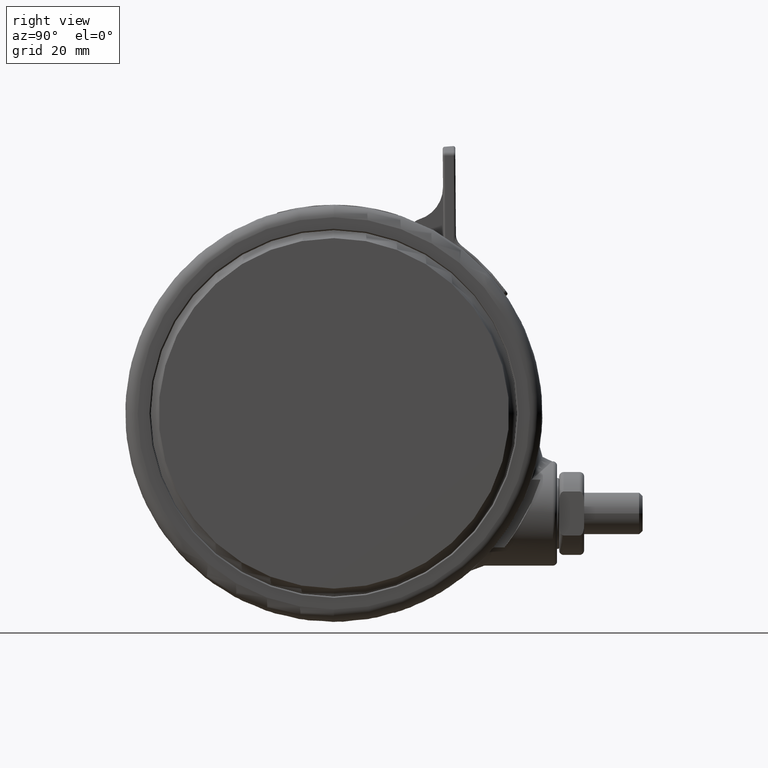
[diagram: clean part render]
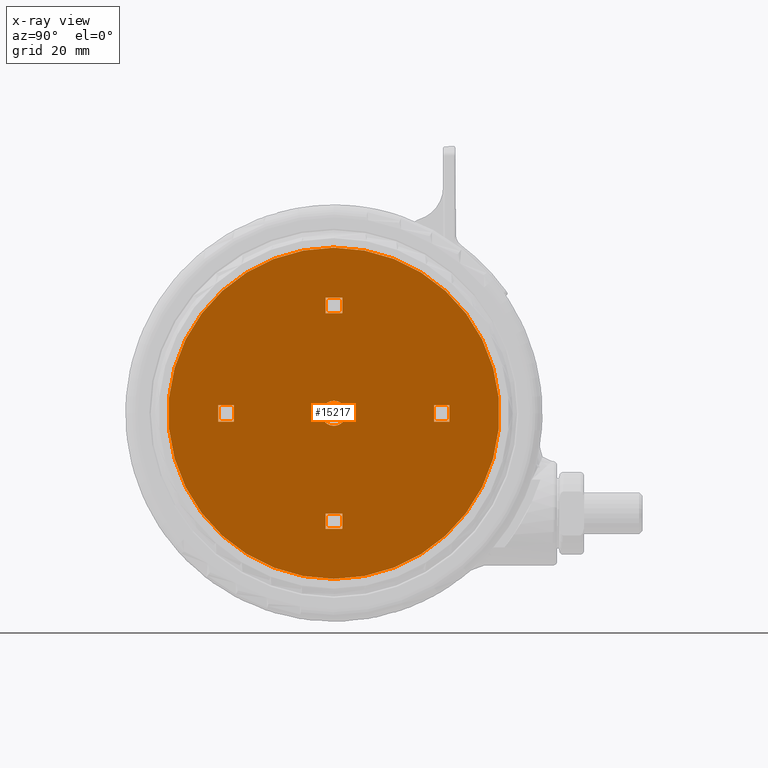
[diagram: x-ray — body ghosted, one internal face saturated and labeled with its STEP entity id]
A machine part, right view, then the same camera in x-ray: the body is ghosted and one INTERNAL B-rep face — a face not visible from any outside direction — is saturated and labeled: STEP entity #15217.
In plain terms, the highlighted planar face has unit normal (1, 0, -0).
Its self-contained STEP definition (entity closure, byte-faithful):
#1216 = VERTEX_POINT ( 'NONE', #29995 ) ;
#1236 = CARTESIAN_POINT ( 'NONE',  ( -24.00000000000000000, -2.000000000000085300, -1.800000000000000000 ) ) ;
#1327 = ORIENTED_EDGE ( 'NONE', *, *, #46119, .F. ) ;
#1688 = LINE ( 'NONE', #40749, #10527 ) ;
#2659 = DIRECTION ( 'NONE',  ( 0.0000000000000000000, -1.000000000000000000, -1.807003620809174900E-016 ) ) ;
#2767 = DIRECTION ( 'NONE',  ( 0.0000000000000000000, 0.0000000000000000000, 1.000000000000000000 ) ) ;
#2881 = CIRCLE ( 'NONE', #34788, 3.000000000000000000 ) ;
#2906 = EDGE_CURVE ( 'NONE', #45290, #19940, #31869, .T. ) ;
#2967 = CARTESIAN_POINT ( 'NONE',  ( 27.69999999999960100, 40.50000000000000000, -1.800000000000000000 ) ) ;
#3038 = CARTESIAN_POINT ( 'NONE',  ( 24.00000000000000000, -1.999999999999750200, -1.800000000000000000 ) ) ;
#3514 = CARTESIAN_POINT ( 'NONE',  ( 2.000000000000000000, 27.69999999999999900, -1.800000000000000000 ) ) ;
#3726 = FACE_BOUND ( 'NONE', #34097, .T. ) ;
#4092 = VERTEX_POINT ( 'NONE', #13174 ) ;
#4139 = ORIENTED_EDGE ( 'NONE', *, *, #5847, .T. ) ;
#4706 = VERTEX_POINT ( 'NONE', #24368 ) ;
#4894 = FACE_BOUND ( 'NONE', #8054, .T. ) ;
#4941 = EDGE_CURVE ( 'NONE', #19940, #17612, #48187, .T. ) ;
#5847 = EDGE_CURVE ( 'NONE', #34821, #25112, #20349, .T. ) ;
#6112 = CARTESIAN_POINT ( 'NONE',  ( -2.000000000000000000, 3.252606517456520200E-016, -1.800000000000000000 ) ) ;
#6302 = EDGE_CURVE ( 'NONE', #43984, #17612, #19788, .T. ) ;
#6652 = LINE ( 'NONE', #44896, #27920 ) ;
#6756 = DIRECTION ( 'NONE',  ( -1.047444401652940200E-014, 1.000000000000000000, 0.0000000000000000000 ) ) ;
#7027 = CARTESIAN_POINT ( 'NONE',  ( -27.69999999999999900, -2.000000000000095000, -1.800000000000000000 ) ) ;
#7148 = DIRECTION ( 'NONE',  ( -1.000000000000000000, 0.0000000000000000000, 0.0000000000000000000 ) ) ;
#7439 = CIRCLE ( 'NONE', #18311, 39.69999999999999600 ) ;
#7590 = CARTESIAN_POINT ( 'NONE',  ( -2.000000000000000000, 24.00000000000000000, -1.800000000000000000 ) ) ;
#7651 = VECTOR ( 'NONE', #32252, 1000.000000000000000 ) ;
#7670 = AXIS2_PLACEMENT_3D ( 'NONE', #17103, #43532, #20888 ) ;
#8054 = EDGE_LOOP ( 'NONE', ( #24970, #40544, #34228, #27446 ) ) ;
#8206 = VERTEX_POINT ( 'NONE', #7027 ) ;
#8537 = VECTOR ( 'NONE', #20758, 1000.000000000000000 ) ;
#9039 = AXIS2_PLACEMENT_3D ( 'NONE', #40427, #2767, #29188 ) ;
#9340 = CARTESIAN_POINT ( 'NONE',  ( 2.127414868480444800E-014, -2.000000000000000000, -1.800000000000000000 ) ) ;
#9468 = VERTEX_POINT ( 'NONE', #12021 ) ;
#9870 = LINE ( 'NONE', #15119, #36462 ) ;
#10291 = VECTOR ( 'NONE', #24747, 1000.000000000000000 ) ;
#10513 = VERTEX_POINT ( 'NONE', #15363 ) ;
#10527 = VECTOR ( 'NONE', #18119, 1000.000000000000000 ) ;
#11083 = VECTOR ( 'NONE', #20884, 1000.000000000000000 ) ;
#11543 = ORIENTED_EDGE ( 'NONE', *, *, #37113, .T. ) ;
#11853 = CARTESIAN_POINT ( 'NONE',  ( 9.270882257193608500E-016, 8.179836557379254000E-016, -1.800000000000023800 ) ) ;
#11937 = DIRECTION ( 'NONE',  ( -0.0000000000000000000, -0.0000000000000000000, -1.000000000000000000 ) ) ;
#12021 = CARTESIAN_POINT ( 'NONE',  ( 2.000000000000000000, -24.00000000000000000, -1.800000000000000000 ) ) ;
#12156 = ORIENTED_EDGE ( 'NONE', *, *, #6302, .F. ) ;
#12806 = VERTEX_POINT ( 'NONE', #34660 ) ;
#13174 = CARTESIAN_POINT ( 'NONE',  ( 3.000000000000000900, 8.179836557379254000E-016, -1.800000000000023800 ) ) ;
#13205 = VECTOR ( 'NONE', #41582, 1000.000000000000000 ) ;
#13550 = EDGE_LOOP ( 'NONE', ( #43117, #11543 ) ) ;
#13746 = FACE_BOUND ( 'NONE', #36878, .T. ) ;
#13987 = PLANE ( 'NONE',  #9039 ) ;
#14289 = EDGE_CURVE ( 'NONE', #4092, #47621, #39268, .T. ) ;
#14629 = LINE ( 'NONE', #35563, #33535 ) ;
#15119 = CARTESIAN_POINT ( 'NONE',  ( -2.000000000000000000, -3.252606517456520200E-016, -1.800000000000000000 ) ) ;
#15217 = ADVANCED_FACE ( 'NONE', ( #23826, #13746, #24987, #4894, #3726, #42730 ), #13987, .F. ) ;
#15363 = CARTESIAN_POINT ( 'NONE',  ( -2.000000000000000000, -27.69999999999999900, -1.800000000000000000 ) ) ;
#15655 = DIRECTION ( 'NONE',  ( 1.000000000000000000, 0.0000000000000000000, 0.0000000000000000000 ) ) ;
#15779 = DIRECTION ( 'NONE',  ( -1.000000000000000000, -1.047444401652940200E-014, -1.807003620809174900E-016 ) ) ;
#16335 = DIRECTION ( 'NONE',  ( -0.0000000000000000000, -0.0000000000000000000, -1.000000000000000000 ) ) ;
#16473 = EDGE_CURVE ( 'NONE', #43984, #45290, #43949, .T. ) ;
#16804 = VECTOR ( 'NONE', #2659, 1000.000000000000000 ) ;
#16884 = VECTOR ( 'NONE', #25196, 1000.000000000000000 ) ;
#17103 = CARTESIAN_POINT ( 'NONE',  ( 0.0000000000000000000, 0.0000000000000000000, -1.800000000000000000 ) ) ;
#17258 = CARTESIAN_POINT ( 'NONE',  ( 2.000000000000000000, -27.69999999999999900, -1.800000000000000000 ) ) ;
#17612 = VERTEX_POINT ( 'NONE', #44459 ) ;
#18119 = DIRECTION ( 'NONE',  ( -1.000000000000000000, -0.0000000000000000000, -0.0000000000000000000 ) ) ;
#18311 = AXIS2_PLACEMENT_3D ( 'NONE', #34566, #11937, #38397 ) ;
#18494 = DIRECTION ( 'NONE',  ( 3.491481338843135300E-015, -1.000000000000000000, 0.0000000000000000000 ) ) ;
#19788 = LINE ( 'NONE', #9340, #8537 ) ;
#19802 = CARTESIAN_POINT ( 'NONE',  ( 24.00000000000000000, 2.000000000000250000, -1.800000000000000000 ) ) ;
#19940 = VERTEX_POINT ( 'NONE', #19802 ) ;
#20233 = ORIENTED_EDGE ( 'NONE', *, *, #39572, .T. ) ;
#20349 = LINE ( 'NONE', #47352, #10291 ) ;
#20381 = DIRECTION ( 'NONE',  ( 1.000000000000000000, 0.0000000000000000000, 0.0000000000000000000 ) ) ;
#20383 = EDGE_CURVE ( 'NONE', #9468, #23066, #1688, .T. ) ;
#20758 = DIRECTION ( 'NONE',  ( -1.000000000000000000, -1.047444401652940200E-014, -1.807003620809174900E-016 ) ) ;
#20884 = DIRECTION ( 'NONE',  ( -3.491481338843135300E-015, 1.000000000000000000, -0.0000000000000000000 ) ) ;
#20888 = DIRECTION ( 'NONE',  ( 1.000000000000000000, 0.0000000000000000000, 0.0000000000000000000 ) ) ;
#21413 = CARTESIAN_POINT ( 'NONE',  ( 6.657702025940609900E-015, -2.000000000000000000, -1.800000000000000000 ) ) ;
#21921 = CARTESIAN_POINT ( 'NONE',  ( 39.69999999999999600, 0.0000000000000000000, -1.800000000000000000 ) ) ;
#22765 = VERTEX_POINT ( 'NONE', #1236 ) ;
#23066 = VERTEX_POINT ( 'NONE', #33044 ) ;
#23826 = FACE_BOUND ( 'NONE', #36670, .T. ) ;
#24368 = CARTESIAN_POINT ( 'NONE',  ( -2.000000000000000000, 27.69999999999999900, -1.800000000000000000 ) ) ;
#24747 = DIRECTION ( 'NONE',  ( 1.000000000000000000, -0.0000000000000000000, -0.0000000000000000000 ) ) ;
#24764 = VERTEX_POINT ( 'NONE', #3514 ) ;
#24970 = ORIENTED_EDGE ( 'NONE', *, *, #32311, .T. ) ;
#24987 = FACE_BOUND ( 'NONE', #42051, .T. ) ;
#25112 = VERTEX_POINT ( 'NONE', #28235 ) ;
#25196 = DIRECTION ( 'NONE',  ( 1.000000000000000000, 3.491481338843135300E-015, -1.807003620809174900E-016 ) ) ;
#25645 = DIRECTION ( 'NONE',  ( 1.047444401652940200E-014, -1.000000000000000000, -0.0000000000000000000 ) ) ;
#26002 = EDGE_CURVE ( 'NONE', #31250, #1216, #7439, .T. ) ;
#26683 = ORIENTED_EDGE ( 'NONE', *, *, #30621, .T. ) ;
#26813 = LINE ( 'NONE', #6112, #16804 ) ;
#27182 = EDGE_CURVE ( 'NONE', #12806, #33291, #33293, .T. ) ;
#27214 = LINE ( 'NONE', #32974, #46814 ) ;
#27446 = ORIENTED_EDGE ( 'NONE', *, *, #27182, .F. ) ;
#27920 = VECTOR ( 'NONE', #18494, 1000.000000000000000 ) ;
#28112 = VECTOR ( 'NONE', #25645, 1000.000000000000000 ) ;
#28235 = CARTESIAN_POINT ( 'NONE',  ( 2.000000000000000000, 24.00000000000000000, -1.800000000000000000 ) ) ;
#28449 = CARTESIAN_POINT ( 'NONE',  ( 2.000000000000000000, 3.252606517456520200E-016, -1.800000000000000000 ) ) ;
#29178 = VECTOR ( 'NONE', #7148, 1000.000000000000000 ) ;
#29188 = DIRECTION ( 'NONE',  ( 1.000000000000000000, 0.0000000000000000000, 0.0000000000000000000 ) ) ;
#29995 = CARTESIAN_POINT ( 'NONE',  ( -39.69999999999999600, 4.910833664580885600E-015, -1.800000000000000000 ) ) ;
#30351 = CARTESIAN_POINT ( 'NONE',  ( 27.69999999999999900, 2.000000000000290000, -1.800000000000000000 ) ) ;
#30621 = EDGE_CURVE ( 'NONE', #4706, #34821, #26813, .T. ) ;
#30944 = ORIENTED_EDGE ( 'NONE', *, *, #4941, .T. ) ;
#31007 = ORIENTED_EDGE ( 'NONE', *, *, #16473, .T. ) ;
#31250 = VERTEX_POINT ( 'NONE', #21921 ) ;
#31794 = EDGE_CURVE ( 'NONE', #24764, #4706, #40419, .T. ) ;
#31869 = LINE ( 'NONE', #42220, #41935 ) ;
#32188 = VECTOR ( 'NONE', #6756, 1000.000000000000000 ) ;
#32252 = DIRECTION ( 'NONE',  ( 0.0000000000000000000, -1.000000000000000000, -1.807003620809174900E-016 ) ) ;
#32311 = EDGE_CURVE ( 'NONE', #12806, #8206, #6652, .T. ) ;
#32652 = VERTEX_POINT ( 'NONE', #17258 ) ;
#32974 = CARTESIAN_POINT ( 'NONE',  ( 2.000000000000000000, -3.252606517456520200E-016, -1.800000000000000000 ) ) ;
#33044 = CARTESIAN_POINT ( 'NONE',  ( -2.000000000000000000, -24.00000000000000000, -1.800000000000000000 ) ) ;
#33291 = VERTEX_POINT ( 'NONE', #44404 ) ;
#33293 = LINE ( 'NONE', #37791, #13205 ) ;
#33535 = VECTOR ( 'NONE', #20381, 1000.000000000000000 ) ;
#34097 = EDGE_LOOP ( 'NONE', ( #35157, #26683, #4139, #1327 ) ) ;
#34228 = ORIENTED_EDGE ( 'NONE', *, *, #35708, .T. ) ;
#34566 = CARTESIAN_POINT ( 'NONE',  ( 0.0000000000000000000, 0.0000000000000000000, -1.800000000000000000 ) ) ;
#34660 = CARTESIAN_POINT ( 'NONE',  ( -27.69999999999999900, 1.999999999999905000, -1.800000000000000000 ) ) ;
#34788 = AXIS2_PLACEMENT_3D ( 'NONE', #11853, #38316, #15655 ) ;
#34821 = VERTEX_POINT ( 'NONE', #7590 ) ;
#34892 = EDGE_CURVE ( 'NONE', #47621, #4092, #2881, .T. ) ;
#35157 = ORIENTED_EDGE ( 'NONE', *, *, #31794, .T. ) ;
#35563 = CARTESIAN_POINT ( 'NONE',  ( 0.0000000000000000000, -27.69999999999999900, -1.800000000000000000 ) ) ;
#35652 = EDGE_CURVE ( 'NONE', #10513, #32652, #14629, .T. ) ;
#35708 = EDGE_CURVE ( 'NONE', #22765, #33291, #43615, .T. ) ;
#36383 = ORIENTED_EDGE ( 'NONE', *, *, #34892, .F. ) ;
#36462 = VECTOR ( 'NONE', #37772, 1000.000000000000000 ) ;
#36670 = EDGE_LOOP ( 'NONE', ( #46411, #36383 ) ) ;
#36795 = DIRECTION ( 'NONE',  ( 0.0000000000000000000, 1.000000000000000000, -1.807003620809174900E-016 ) ) ;
#36878 = EDGE_LOOP ( 'NONE', ( #31007, #46097, #30944, #12156 ) ) ;
#36890 = EDGE_CURVE ( 'NONE', #8206, #22765, #46991, .T. ) ;
#37113 = EDGE_CURVE ( 'NONE', #1216, #31250, #48750, .T. ) ;
#37772 = DIRECTION ( 'NONE',  ( 0.0000000000000000000, 1.000000000000000000, -1.807003620809174900E-016 ) ) ;
#37791 = CARTESIAN_POINT ( 'NONE',  ( -7.308223329431919600E-015, 2.000000000000000000, -1.800000000000000000 ) ) ;
#37804 = LINE ( 'NONE', #28449, #7651 ) ;
#37903 = AXIS2_PLACEMENT_3D ( 'NONE', #38978, #16335, #42770 ) ;
#38316 = DIRECTION ( 'NONE',  ( -0.0000000000000000000, -0.0000000000000000000, -1.000000000000000000 ) ) ;
#38397 = DIRECTION ( 'NONE',  ( 1.000000000000000000, 0.0000000000000000000, 0.0000000000000000000 ) ) ;
#38978 = CARTESIAN_POINT ( 'NONE',  ( 9.270882257193608500E-016, 8.179836557379254000E-016, -1.800000000000023800 ) ) ;
#39268 = CIRCLE ( 'NONE', #37903, 3.000000000000000000 ) ;
#39572 = EDGE_CURVE ( 'NONE', #32652, #9468, #27214, .T. ) ;
#39709 = CARTESIAN_POINT ( 'NONE',  ( -24.00000000000000000, 1.999999999999915000, -1.800000000000000000 ) ) ;
#40419 = LINE ( 'NONE', #41198, #29178 ) ;
#40427 = CARTESIAN_POINT ( 'NONE',  ( 0.0000000000000000000, 40.50000000000000000, -1.800000000000000000 ) ) ;
#40544 = ORIENTED_EDGE ( 'NONE', *, *, #36890, .T. ) ;
#40634 = CARTESIAN_POINT ( 'NONE',  ( 27.69999999999999900, -1.999999999999710000, -1.800000000000000000 ) ) ;
#40749 = CARTESIAN_POINT ( 'NONE',  ( -2.000000000000000000, -24.00000000000000000, -1.800000000000000000 ) ) ;
#41198 = CARTESIAN_POINT ( 'NONE',  ( 0.0000000000000000000, 27.69999999999999900, -1.800000000000000000 ) ) ;
#41582 = DIRECTION ( 'NONE',  ( 1.000000000000000000, 3.491481338843135300E-015, -1.807003620809174900E-016 ) ) ;
#41935 = VECTOR ( 'NONE', #15779, 1000.000000000000000 ) ;
#42051 = EDGE_LOOP ( 'NONE', ( #45940, #20233, #45077, #47912 ) ) ;
#42220 = CARTESIAN_POINT ( 'NONE',  ( -2.062362738131314900E-014, 2.000000000000000000, -1.800000000000000000 ) ) ;
#42698 = CARTESIAN_POINT ( 'NONE',  ( -2.999999999999999100, -1.633270143919610600E-016, -1.800000000000023800 ) ) ;
#42730 = FACE_OUTER_BOUND ( 'NONE', #13550, .T. ) ;
#42770 = DIRECTION ( 'NONE',  ( 1.000000000000000000, 0.0000000000000000000, 0.0000000000000000000 ) ) ;
#42953 = EDGE_CURVE ( 'NONE', #10513, #23066, #9870, .T. ) ;
#43117 = ORIENTED_EDGE ( 'NONE', *, *, #26002, .T. ) ;
#43532 = DIRECTION ( 'NONE',  ( -0.0000000000000000000, -0.0000000000000000000, -1.000000000000000000 ) ) ;
#43615 = LINE ( 'NONE', #39709, #11083 ) ;
#43949 = LINE ( 'NONE', #2967, #32188 ) ;
#43984 = VERTEX_POINT ( 'NONE', #40634 ) ;
#44404 = CARTESIAN_POINT ( 'NONE',  ( -24.00000000000000000, 1.999999999999915000, -1.800000000000000000 ) ) ;
#44459 = CARTESIAN_POINT ( 'NONE',  ( 24.00000000000000000, -1.999999999999750200, -1.800000000000000000 ) ) ;
#44896 = CARTESIAN_POINT ( 'NONE',  ( -27.69999999999999900, 40.50000000000000000, -1.800000000000000000 ) ) ;
#45077 = ORIENTED_EDGE ( 'NONE', *, *, #20383, .T. ) ;
#45290 = VERTEX_POINT ( 'NONE', #30351 ) ;
#45940 = ORIENTED_EDGE ( 'NONE', *, *, #35652, .T. ) ;
#46097 = ORIENTED_EDGE ( 'NONE', *, *, #2906, .T. ) ;
#46119 = EDGE_CURVE ( 'NONE', #24764, #25112, #37804, .T. ) ;
#46411 = ORIENTED_EDGE ( 'NONE', *, *, #14289, .F. ) ;
#46814 = VECTOR ( 'NONE', #36795, 1000.000000000000000 ) ;
#46991 = LINE ( 'NONE', #21413, #16884 ) ;
#47352 = CARTESIAN_POINT ( 'NONE',  ( 2.000000000000000000, 24.00000000000000000, -1.800000000000000000 ) ) ;
#47621 = VERTEX_POINT ( 'NONE', #42698 ) ;
#47912 = ORIENTED_EDGE ( 'NONE', *, *, #42953, .F. ) ;
#48187 = LINE ( 'NONE', #3038, #28112 ) ;
#48750 = CIRCLE ( 'NONE', #7670, 39.69999999999999600 ) ;